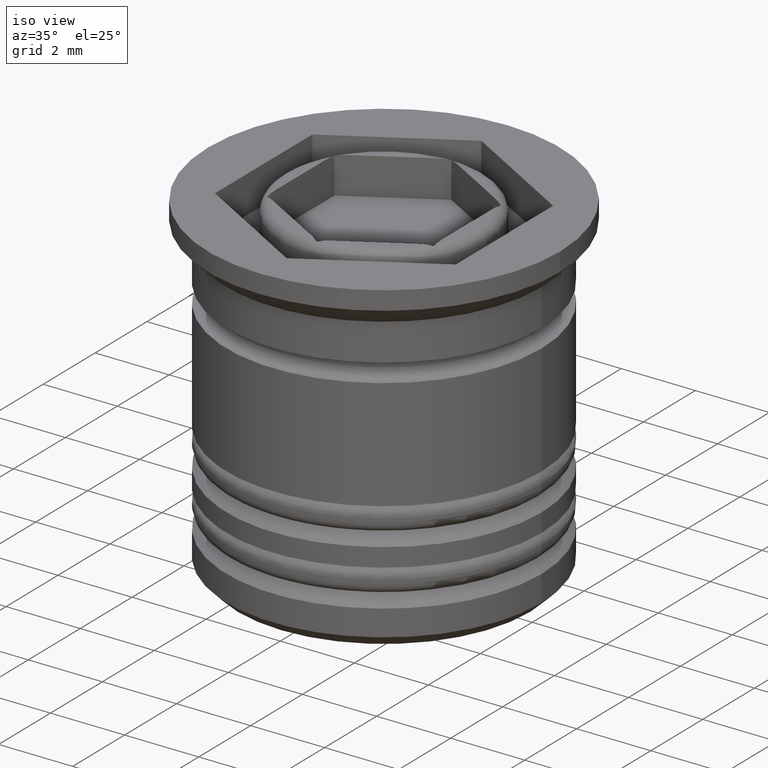
[diagram: clean part render]
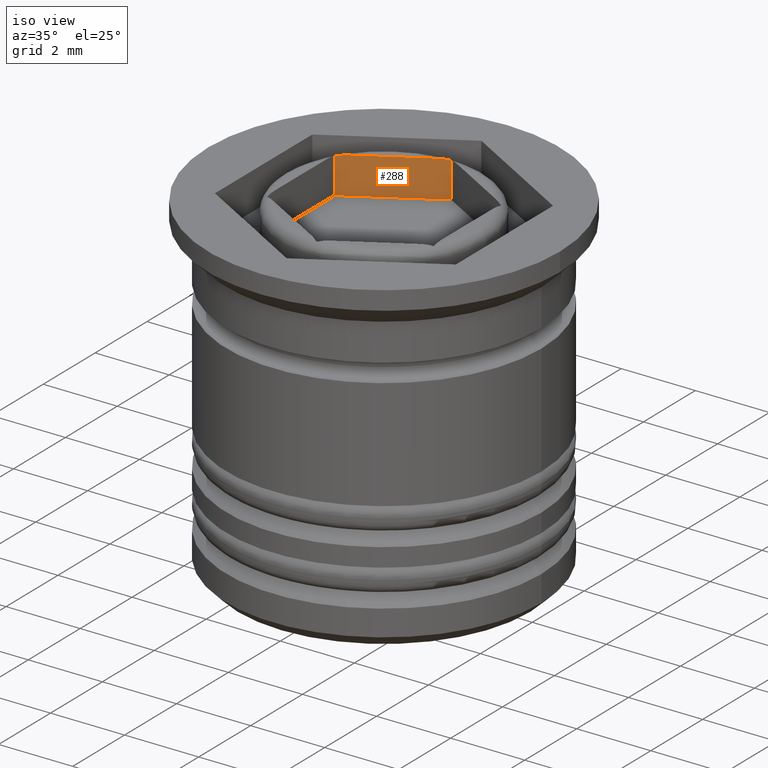
[diagram: same view with one face highlighted and labeled with its STEP entity id]
A machine part, iso view. The second image highlights one B-rep face of the part: STEP entity #288.
In plain terms, the highlighted planar face has unit normal (-0.5, 0.866, 0).
Its self-contained STEP definition (entity closure, byte-faithful):
#3 = CARTESIAN_POINT ( 'NONE',  ( 0.000000000000000000, 2.598076211353315568, 0.000000000000000000 ) ) ;
#105 = DIRECTION ( 'NONE',  ( -0.5000000000000001110, 0.8660254037844385966, 0.000000000000000000 ) ) ;
#121 = ORIENTED_EDGE ( 'NONE', *, *, #944, .T. ) ;
#138 = VERTEX_POINT ( 'NONE', #691 ) ;
#153 = EDGE_CURVE ( 'NONE', #794, #138, #406, .T. ) ;
#195 = CARTESIAN_POINT ( 'NONE',  ( -2.061100629496125158, 1.408099208086819987, 0.000000000000000000 ) ) ;
#222 = B_SPLINE_CURVE_WITH_KNOTS ( 'NONE', 3,
 ( #798, #195, #1754, #1744 ),
 .UNSPECIFIED., .F., .F.,
 ( 4, 4 ),
 ( 0.000000000000000000, 0.0003318128588590306210 ),
 .UNSPECIFIED. ) ;
#229 = LINE ( 'NONE', #1978, #376 ) ;
#265 = LINE ( 'NONE', #591, #444 ) ;
#273 = ORIENTED_EDGE ( 'NONE', *, *, #153, .T. ) ;
#288 = ADVANCED_FACE ( 'NONE', ( #1385 ), #1535, .F. ) ;
#363 = LINE ( 'NONE', #640, #685 ) ;
#376 = VECTOR ( 'NONE', #1328, 1000.000000000000000 ) ;
#406 = B_SPLINE_CURVE_WITH_KNOTS ( 'NONE', 3,
 ( #1640, #1147, #995, #1785 ),
 .UNSPECIFIED., .F., .F.,
 ( 4, 4 ),
 ( 7.807858345385552951E-20, 0.0003318128588590312173 ),
 .UNSPECIFIED. ) ;
#444 = VECTOR ( 'NONE', #1989, 1000.000000000000000 ) ;
#459 = CARTESIAN_POINT ( 'NONE',  ( -1.964642781187333931, 1.463789172773352742, 0.000000000000000000 ) ) ;
#506 = CARTESIAN_POINT ( 'NONE',  ( 0.000000000000000000, 2.598076211353315568, -0.03909113539159181361 ) ) ;
#585 = EDGE_CURVE ( 'NONE', #1170, #1979, #265, .T. ) ;
#591 = CARTESIAN_POINT ( 'NONE',  ( -2.249999999999999556, 1.299038105676657340, -7.873863542433759299 ) ) ;
#633 = ORIENTED_EDGE ( 'NONE', *, *, #585, .F. ) ;
#640 = CARTESIAN_POINT ( 'NONE',  ( 0.000000000000000000, 2.598076211353315568, -1.000000000000000000 ) ) ;
#657 = CARTESIAN_POINT ( 'NONE',  ( 0.000000000000000000, 2.598076211353315568, -1.000000000000000000 ) ) ;
#683 = EDGE_LOOP ( 'NONE', ( #121, #273, #1082, #2031, #633, #1455 ) ) ;
#685 = VECTOR ( 'NONE', #1618, 1000.000000000000000 ) ;
#691 = CARTESIAN_POINT ( 'NONE',  ( -0.2853572188126657916, 2.433325144256619943, 0.000000000000000000 ) ) ;
#794 = VERTEX_POINT ( 'NONE', #506 ) ;
#798 = CARTESIAN_POINT ( 'NONE',  ( -1.964642781187333931, 1.463789172773352742, 0.000000000000000000 ) ) ;
#851 = CARTESIAN_POINT ( 'NONE',  ( -2.249999999999999556, 1.299038105676657340, -0.03909113539159181361 ) ) ;
#944 = EDGE_CURVE ( 'NONE', #1182, #794, #229, .T. ) ;
#995 = CARTESIAN_POINT ( 'NONE',  ( -0.1888993705038740090, 2.489015108943152921, 5.673802033703191998E-17 ) ) ;
#1059 = EDGE_CURVE ( 'NONE', #138, #1704, #1391, .T. ) ;
#1082 = ORIENTED_EDGE ( 'NONE', *, *, #1059, .T. ) ;
#1147 = CARTESIAN_POINT ( 'NONE',  ( -0.09331629800900279048, 2.544200021578038484, -0.008514243816639925286 ) ) ;
#1170 = VERTEX_POINT ( 'NONE', #1857 ) ;
#1182 = VERTEX_POINT ( 'NONE', #657 ) ;
#1216 = DIRECTION ( 'NONE',  ( -0.8660254037844385966, -0.5000000000000001110, 0.000000000000000000 ) ) ;
#1328 = DIRECTION ( 'NONE',  ( -0.000000000000000000, -0.000000000000000000, 1.000000000000000000 ) ) ;
#1340 = EDGE_CURVE ( 'NONE', #1704, #1979, #222, .T. ) ;
#1385 = FACE_OUTER_BOUND ( 'NONE', #683, .T. ) ;
#1391 = LINE ( 'NONE', #3, #1530 ) ;
#1407 = EDGE_CURVE ( 'NONE', #1170, #1182, #363, .T. ) ;
#1455 = ORIENTED_EDGE ( 'NONE', *, *, #1407, .T. ) ;
#1489 = AXIS2_PLACEMENT_3D ( 'NONE', #2005, #105, #1216 ) ;
#1530 = VECTOR ( 'NONE', #2027, 1000.000000000000000 ) ;
#1535 = PLANE ( 'NONE',  #1489 ) ;
#1618 = DIRECTION ( 'NONE',  ( 0.8660254037844385966, 0.5000000000000001110, 0.000000000000000000 ) ) ;
#1640 = CARTESIAN_POINT ( 'NONE',  ( 0.000000000000000000, 2.598076211353315568, -0.03909113539159181361 ) ) ;
#1704 = VERTEX_POINT ( 'NONE', #459 ) ;
#1744 = CARTESIAN_POINT ( 'NONE',  ( -2.249999999999999556, 1.299038105676657340, -0.03909113539159181361 ) ) ;
#1754 = CARTESIAN_POINT ( 'NONE',  ( -2.156683701990996127, 1.352914295451934867, -0.008514243816631204831 ) ) ;
#1785 = CARTESIAN_POINT ( 'NONE',  ( -0.2853572188126657916, 2.433325144256619943, 0.000000000000000000 ) ) ;
#1857 = CARTESIAN_POINT ( 'NONE',  ( -2.249999999999999556, 1.299038105676657340, -1.000000000000000000 ) ) ;
#1978 = CARTESIAN_POINT ( 'NONE',  ( 0.000000000000000000, 2.598076211353315568, -7.873863542433759299 ) ) ;
#1979 = VERTEX_POINT ( 'NONE', #851 ) ;
#1989 = DIRECTION ( 'NONE',  ( -0.000000000000000000, -0.000000000000000000, 1.000000000000000000 ) ) ;
#2005 = CARTESIAN_POINT ( 'NONE',  ( 0.000000000000000000, 2.598076211353315568, -7.873863542433759299 ) ) ;
#2027 = DIRECTION ( 'NONE',  ( -0.8660254037844385966, -0.5000000000000001110, 0.000000000000000000 ) ) ;
#2031 = ORIENTED_EDGE ( 'NONE', *, *, #1340, .T. ) ;